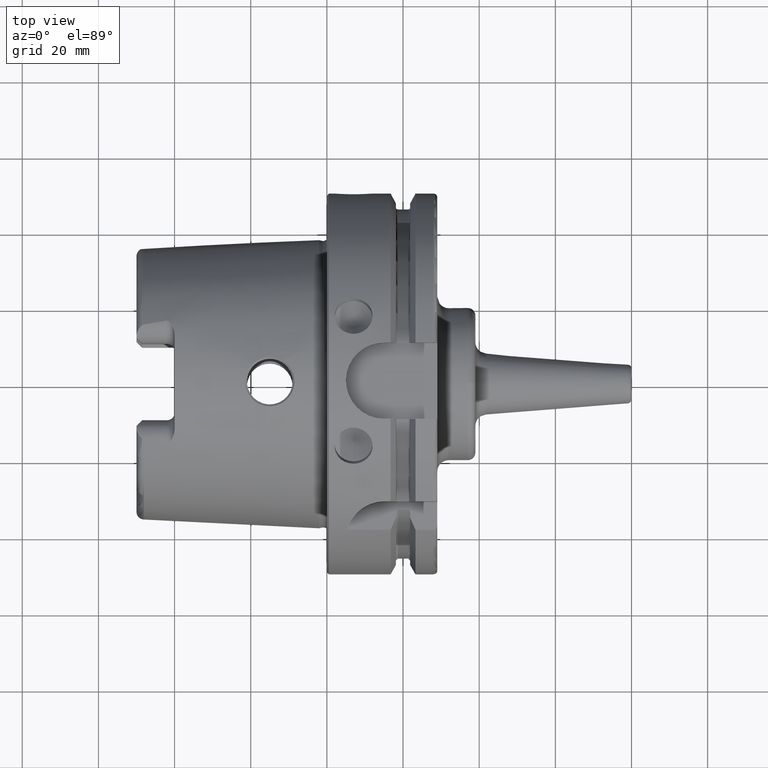
[diagram: clean part render]
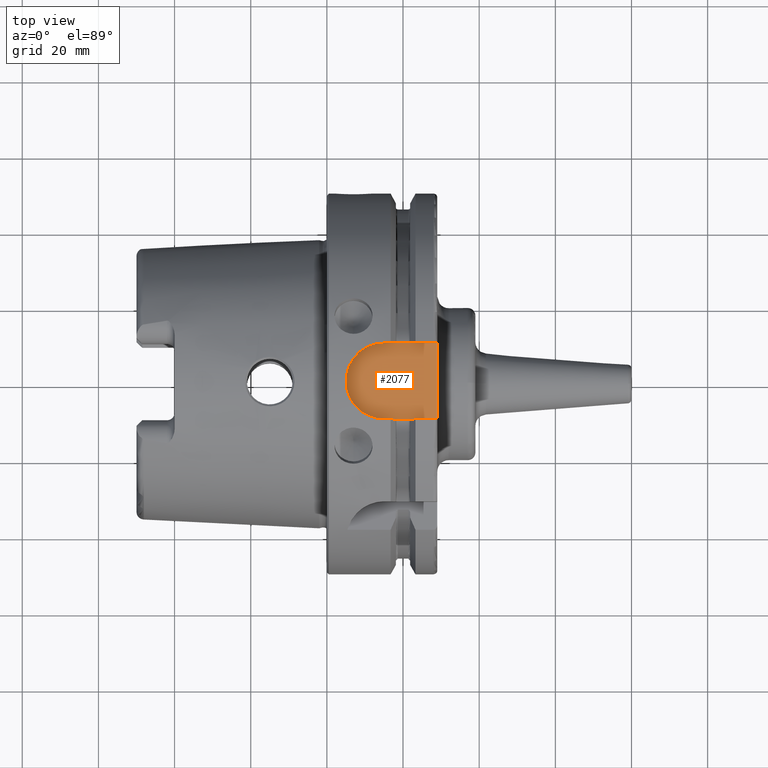
[diagram: same view with one face highlighted and labeled with its STEP entity id]
A machine part, top view. The second image highlights one B-rep face of the part: STEP entity #2077.
In plain terms, the highlighted planar face has unit normal (0, 0, 1).
Its self-contained STEP definition (entity closure, byte-faithful):
#169=PLANE('',#2312);
#189=LINE('',#3097,#296);
#266=LINE('',#4431,#373);
#269=LINE('',#4438,#376);
#296=VECTOR('',#2473,10.);
#373=VECTOR('',#2818,10.);
#376=VECTOR('',#2827,10.);
#487=FACE_OUTER_BOUND('',#615,.T.);
#615=EDGE_LOOP('',(#1763,#1764,#1765,#1766));
#751=CIRCLE('',#2310,10.);
#821=VERTEX_POINT('',#3094);
#822=VERTEX_POINT('',#3096);
#977=VERTEX_POINT('',#4430);
#978=VERTEX_POINT('',#4434);
#1037=EDGE_CURVE('',#821,#822,#189,.T.);
#1255=EDGE_CURVE('',#977,#822,#266,.T.);
#1257=EDGE_CURVE('',#978,#977,#751,.T.);
#1259=EDGE_CURVE('',#821,#978,#269,.T.);
#1763=ORIENTED_EDGE('',*,*,#1259,.T.);
#1764=ORIENTED_EDGE('',*,*,#1257,.T.);
#1765=ORIENTED_EDGE('',*,*,#1255,.T.);
#1766=ORIENTED_EDGE('',*,*,#1037,.F.);
#2077=ADVANCED_FACE('',(#487),#169,.T.);
#2310=AXIS2_PLACEMENT_3D('',#4435,#2822,#2823);
#2312=AXIS2_PLACEMENT_3D('',#4439,#2828,#2829);
#2473=DIRECTION('',(0.,-1.,0.));
#2818=DIRECTION('',(1.,7.93016446160826E-17,0.));
#2822=DIRECTION('center_axis',(0.,0.,1.));
#2823=DIRECTION('ref_axis',(0.,1.,0.));
#2827=DIRECTION('',(-1.,0.,0.));
#2828=DIRECTION('center_axis',(0.,0.,1.));
#2829=DIRECTION('ref_axis',(1.,0.,0.));
#3094=CARTESIAN_POINT('',(29.,10.,44.));
#3096=CARTESIAN_POINT('',(29.,-10.,44.));
#3097=CARTESIAN_POINT('',(29.,0.,44.));
#4430=CARTESIAN_POINT('',(15.,-10.,44.));
#4431=CARTESIAN_POINT('',(15.,-10.,44.));
#4434=CARTESIAN_POINT('',(15.,10.,44.));
#4435=CARTESIAN_POINT('Origin',(15.,0.,44.));
#4438=CARTESIAN_POINT('',(29.,10.,44.));
#4439=CARTESIAN_POINT('Origin',(17.,0.,44.));